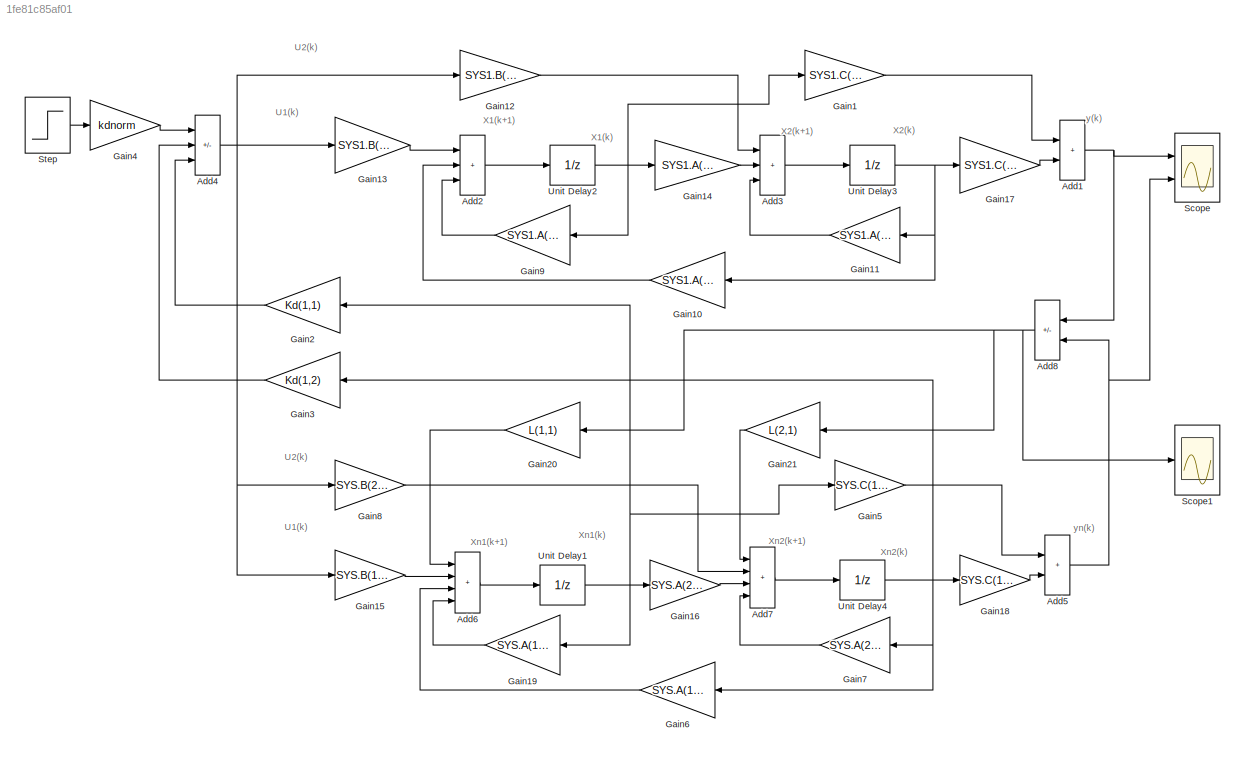
MODEL slx_1fe81c85af01
KIND model
CONFIG AbsTol = auto
CONFIG EnableMultiTasking = off
CONFIG FixedStep = Ts
CONFIG MaxStep = auto
CONFIG MinStep = auto
CONFIG RelTol = 1e-3
CONFIG SampleTimeConstraint = Unconstrained
CONFIG SolverName = FixedStepAuto
CONFIG StartTime = 0.0
CONFIG StopTime = 2.5
BLOCK [Sum] Add1
  IconShape = rectangular
  Ports = [2, 1]
BLOCK [Sum] Add2
  IconShape = rectangular
  Inputs = +++
  Ports = [3, 1]
BLOCK [Sum] Add3
  IconShape = rectangular
  Inputs = +++
  Ports = [3, 1]
BLOCK [Sum] Add4
  IconShape = rectangular
  Inputs = +--
  Ports = [3, 1]
BLOCK [Sum] Add5
  IconShape = rectangular
  Ports = [2, 1]
BLOCK [Sum] Add6
  IconShape = rectangular
  Inputs = ++++
  Ports = [4, 1]
BLOCK [Sum] Add7
  IconShape = rectangular
  Inputs = ++++
  Ports = [4, 1]
BLOCK [Sum] Add8
  IconShape = rectangular
  Inputs = +-
  Ports = [2, 1]
BLOCK [Gain] Gain1
  Gain = SYS1.C(1,1)
BLOCK [Gain] Gain10
  Gain = SYS1.A(1,2)
BLOCK [Gain] Gain11
  Gain = SYS1.A(2,2)
BLOCK [Gain] Gain12
  Gain = SYS1.B(2,1)
BLOCK [Gain] Gain13
  Gain = SYS1.B(1,1)
BLOCK [Gain] Gain14
  Gain = SYS1.A(2,1)
BLOCK [Gain] Gain15
  Gain = SYS.B(1,1)
BLOCK [Gain] Gain16
  Gain = SYS.A(2,1)
BLOCK [Gain] Gain17
  Gain = SYS1.C(1,2)
BLOCK [Gain] Gain18
  Gain = SYS.C(1,2)
BLOCK [Gain] Gain19
  Gain = SYS.A(1,1)
BLOCK [Gain] Gain2
  Gain = Kd(1,1)
BLOCK [Gain] Gain20
  Gain = L(1,1)
BLOCK [Gain] Gain21
  Gain = L(2,1)
BLOCK [Gain] Gain3
  Gain = Kd(1,2)
BLOCK [Gain] Gain4
  Gain = kdnorm
BLOCK [Gain] Gain5
  Gain = SYS.C(1,1)
BLOCK [Gain] Gain6
  Gain = SYS.A(1,2)
BLOCK [Gain] Gain7
  Gain = SYS.A(2,2)
BLOCK [Gain] Gain8
  Gain = SYS.B(2,1)
BLOCK [Gain] Gain9
  Gain = SYS1.A(1,1)
BLOCK [Scope] Scope
  Floating = off
  NumInputPorts = 2
  Ports = [2]
  ScopeSpecificationString = Simulink.scopes.TimeScopeBlockCfg('CurrentConfiguration', extmgr.ConfigurationSet(extmgr.Configuration('Core','General UI',true,'FigureColor',[1 1 1]),extmgr.Configuration('Core','Source UI',true),extmgr.Configuration('Sources','WiredSimulink',true,'DataLoggingDecimateData',true,'DataLoggingDecimation','1'),extmgr.Configuration('Visuals','Time Domain',true,'SerializedDisplays',{struct('MinYLimReal...<+1585ch>
BLOCK [Scope] Scope1
  Floating = off
  NumInputPorts = 1
  Ports = [1]
  ScopeSpecificationString = Simulink.scopes.TimeScopeBlockCfg('CurrentConfiguration', extmgr.ConfigurationSet(extmgr.Configuration('Core','General UI',true,'FigureColor',[1 1 1]),extmgr.Configuration('Core','Source UI',true),extmgr.Configuration('Sources','WiredSimulink',true,'DataLoggingDecimateData',true,'DataLoggingDecimation','1','DataLoggingVariableName','ScopeData1'),extmgr.Configuration('Visuals','Time Domain',true,'S...<+1618ch>
BLOCK [Step] Step
  SampleTime = 0
  Time = 0
BLOCK [UnitDelay] Unit Delay1
  HasFrameUpgradeWarning = on
  SampleTime = Ts
BLOCK [UnitDelay] Unit Delay2
  HasFrameUpgradeWarning = on
  SampleTime = Ts
BLOCK [UnitDelay] Unit Delay3
  HasFrameUpgradeWarning = on
  SampleTime = Ts
BLOCK [UnitDelay] Unit Delay4
  HasFrameUpgradeWarning = on
  SampleTime = Ts
ANNOTATION (root): yn(k)
ANNOTATION (root): y(k)
ANNOTATION (root): U1(k)
ANNOTATION (root): U2(k)
ANNOTATION (root): X1(k)
ANNOTATION (root): X1(k+1)
ANNOTATION (root): X2(k)
ANNOTATION (root): X2(k+1)
ANNOTATION (root): Xn1(k)
ANNOTATION (root): Xn1(k+1)
ANNOTATION (root): Xn2(k)
ANNOTATION (root): Xn2(k+1)
NET Add1:1 -> Add8:1, Scope:1
LINE Add2:1 -> Unit Delay2:1
LINE Add3:1 -> Unit Delay3:1
NET Add4:1 -> Gain12:1, Gain13:1, Gain15:1, Gain8:1
NET Add5:1 -> Add8:2, Scope:2
LINE Add6:1 -> Unit Delay1:1
LINE Add7:1 -> Unit Delay4:1
NET Add8:1 -> Gain20:1, Gain21:1, Scope1:1
LINE Gain10:1 -> Add2:2
LINE Gain11:1 -> Add3:3
LINE Gain12:1 -> Add3:1
LINE Gain13:1 -> Add2:1
LINE Gain14:1 -> Add3:2
LINE Gain15:1 -> Add6:2
LINE Gain16:1 -> Add7:3
LINE Gain17:1 -> Add1:2
LINE Gain18:1 -> Add5:2
LINE Gain19:1 -> Add6:4
LINE Gain1:1 -> Add1:1
LINE Gain20:1 -> Add6:1
LINE Gain21:1 -> Add7:1
LINE Gain2:1 -> Add4:3
LINE Gain3:1 -> Add4:2
LINE Gain4:1 -> Add4:1
LINE Gain5:1 -> Add5:1
LINE Gain6:1 -> Add6:3
LINE Gain7:1 -> Add7:4
LINE Gain8:1 -> Add7:2
LINE Gain9:1 -> Add2:3
LINE Step:1 -> Gain4:1
NET Unit Delay1:1 -> Gain16:1, Gain19:1, Gain2:1, Gain5:1
NET Unit Delay2:1 -> Gain14:1, Gain1:1, Gain9:1
NET Unit Delay3:1 -> Gain10:1, Gain11:1, Gain17:1
NET Unit Delay4:1 -> Gain18:1, Gain3:1, Gain6:1, Gain7:1
note: NET lines group one-source signal fan-out (src -> all destinations, sorted); 1:1 wires keep LINE
